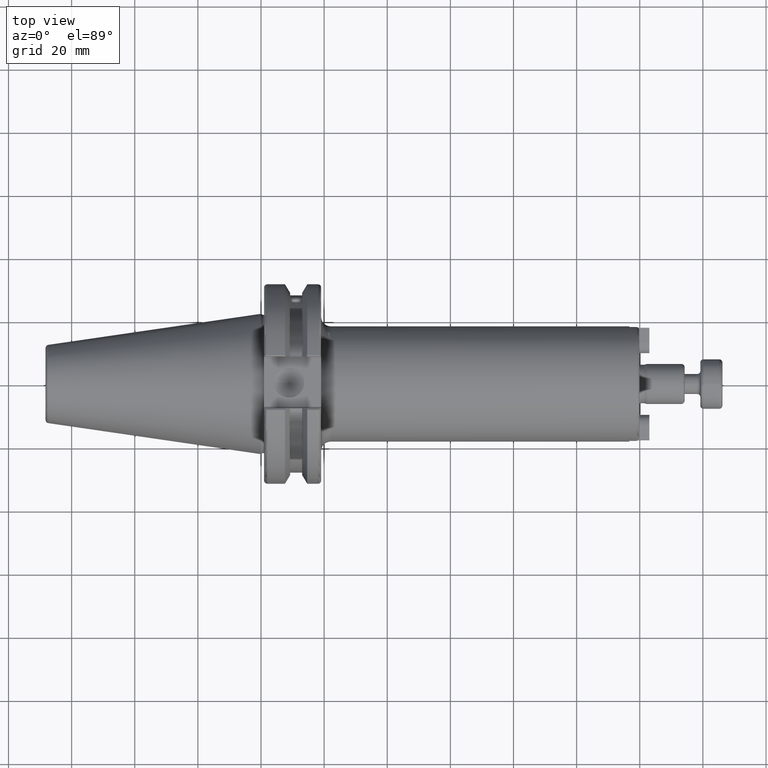
[diagram: clean part render]
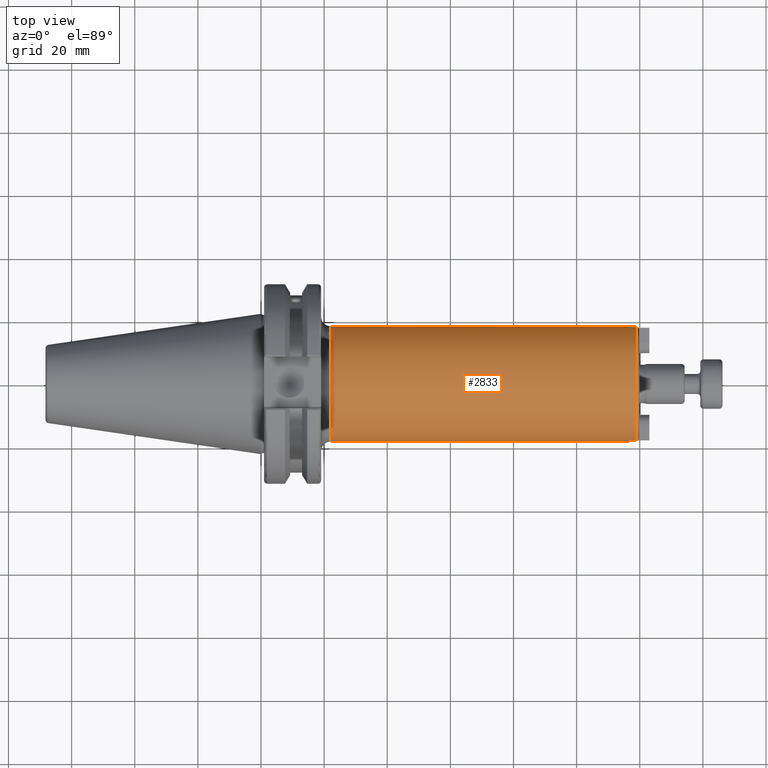
[diagram: same view with one face highlighted and labeled with its STEP entity id]
A machine part, top view. The second image highlights one B-rep face of the part: STEP entity #2833.
In plain terms, the highlighted cylindrical surface (bore or boss wall) has radius 18.265 mm, axis along (1, 0, 0).
Its self-contained STEP definition (entity closure, byte-faithful):
#115=CYLINDRICAL_SURFACE('',#3095,18.265);
#245=FACE_OUTER_BOUND('',#401,.T.);
#401=EDGE_LOOP('',(#1897,#1898,#1899,#1900,#1901,#1902,#1903,#1904,#1905,
#1906,#1907,#1908,#1909,#1910));
#577=LINE('',#4394,#751);
#583=LINE('',#4424,#757);
#585=LINE('',#4439,#759);
#586=LINE('',#4448,#760);
#587=LINE('',#4452,#761);
#751=VECTOR('',#3473,10.);
#757=VECTOR('',#3493,10.);
#759=VECTOR('',#3497,18.265);
#760=VECTOR('',#3506,10.);
#761=VECTOR('',#3509,10.);
#923=CIRCLE('',#3082,18.265);
#925=CIRCLE('',#3084,18.265);
#931=CIRCLE('',#3096,18.265);
#932=CIRCLE('',#3097,18.265);
#933=CIRCLE('',#3098,18.265);
#934=CIRCLE('',#3099,18.265);
#935=CIRCLE('',#3100,18.265);
#936=CIRCLE('',#3101,18.265);
#1113=VERTEX_POINT('',#4378);
#1114=VERTEX_POINT('',#4379);
#1117=VERTEX_POINT('',#4385);
#1120=VERTEX_POINT('',#4393);
#1127=VERTEX_POINT('',#4423);
#1129=VERTEX_POINT('',#4438);
#1130=VERTEX_POINT('',#4440);
#1131=VERTEX_POINT('',#4442);
#1132=VERTEX_POINT('',#4445);
#1133=VERTEX_POINT('',#4447);
#1134=VERTEX_POINT('',#4449);
#1135=VERTEX_POINT('',#4451);
#1423=EDGE_CURVE('',#1113,#1114,#923,.T.);
#1427=EDGE_CURVE('',#1114,#1117,#925,.T.);
#1430=EDGE_CURVE('',#1117,#1120,#577,.T.);
#1440=EDGE_CURVE('',#1127,#1113,#583,.T.);
#1443=EDGE_CURVE('',#1114,#1129,#585,.T.);
#1444=EDGE_CURVE('',#1130,#1129,#931,.T.);
#1445=EDGE_CURVE('',#1131,#1130,#932,.T.);
#1446=EDGE_CURVE('',#1129,#1131,#933,.T.);
#1447=EDGE_CURVE('',#1132,#1120,#934,.T.);
#1448=EDGE_CURVE('',#1132,#1133,#586,.T.);
#1449=EDGE_CURVE('',#1133,#1134,#935,.T.);
#1450=EDGE_CURVE('',#1134,#1135,#587,.T.);
#1451=EDGE_CURVE('',#1127,#1135,#936,.T.);
#1897=ORIENTED_EDGE('',*,*,#1440,.T.);
#1898=ORIENTED_EDGE('',*,*,#1423,.T.);
#1899=ORIENTED_EDGE('',*,*,#1443,.T.);
#1900=ORIENTED_EDGE('',*,*,#1444,.F.);
#1901=ORIENTED_EDGE('',*,*,#1445,.F.);
#1902=ORIENTED_EDGE('',*,*,#1446,.F.);
#1903=ORIENTED_EDGE('',*,*,#1443,.F.);
#1904=ORIENTED_EDGE('',*,*,#1427,.T.);
#1905=ORIENTED_EDGE('',*,*,#1430,.T.);
#1906=ORIENTED_EDGE('',*,*,#1447,.F.);
#1907=ORIENTED_EDGE('',*,*,#1448,.T.);
#1908=ORIENTED_EDGE('',*,*,#1449,.T.);
#1909=ORIENTED_EDGE('',*,*,#1450,.T.);
#1910=ORIENTED_EDGE('',*,*,#1451,.F.);
#2833=ADVANCED_FACE('',(#245),#115,.T.);
#3082=AXIS2_PLACEMENT_3D('',#4380,#3459,#3460);
#3084=AXIS2_PLACEMENT_3D('',#4387,#3465,#3466);
#3095=AXIS2_PLACEMENT_3D('',#4437,#3495,#3496);
#3096=AXIS2_PLACEMENT_3D('',#4441,#3498,#3499);
#3097=AXIS2_PLACEMENT_3D('',#4443,#3500,#3501);
#3098=AXIS2_PLACEMENT_3D('',#4444,#3502,#3503);
#3099=AXIS2_PLACEMENT_3D('',#4446,#3504,#3505);
#3100=AXIS2_PLACEMENT_3D('',#4450,#3507,#3508);
#3101=AXIS2_PLACEMENT_3D('',#4453,#3510,#3511);
#3459=DIRECTION('center_axis',(-1.,0.,0.));
#3460=DIRECTION('ref_axis',(0.,1.,0.));
#3465=DIRECTION('center_axis',(-1.,0.,0.));
#3466=DIRECTION('ref_axis',(0.,1.,0.));
#3473=DIRECTION('',(1.,0.,0.));
#3493=DIRECTION('',(-1.,0.,0.));
#3495=DIRECTION('center_axis',(1.,0.,0.));
#3496=DIRECTION('ref_axis',(0.,1.,0.));
#3497=DIRECTION('',(-1.,0.,0.));
#3498=DIRECTION('center_axis',(-1.,0.,0.));
#3499=DIRECTION('ref_axis',(0.,-1.,-1.22464679914735E-16));
#3500=DIRECTION('center_axis',(-1.,0.,0.));
#3501=DIRECTION('ref_axis',(0.,-1.,-1.22464679914735E-16));
#3502=DIRECTION('center_axis',(-1.,0.,0.));
#3503=DIRECTION('ref_axis',(0.,-1.,-1.22464679914735E-16));
#3504=DIRECTION('center_axis',(1.,0.,0.));
#3505=DIRECTION('ref_axis',(0.,-1.,1.83697019872103E-16));
#3506=DIRECTION('',(-1.,0.,0.));
#3507=DIRECTION('center_axis',(-1.,0.,0.));
#3508=DIRECTION('ref_axis',(0.,1.,0.));
#3509=DIRECTION('',(1.,0.,0.));
#3510=DIRECTION('center_axis',(1.,0.,0.));
#3511=DIRECTION('ref_axis',(0.,-1.,1.83697019872103E-16));
#4378=CARTESIAN_POINT('',(116.688,-17.9869285871713,-3.175));
#4379=CARTESIAN_POINT('',(116.688,-18.265,-2.23681737864264E-15));
#4380=CARTESIAN_POINT('Origin',(116.688,0.,0.));
#4385=CARTESIAN_POINT('',(116.688,-17.9869285871713,3.175));
#4387=CARTESIAN_POINT('Origin',(116.688,0.,0.));
#4393=CARTESIAN_POINT('',(118.888,-17.9869285871713,3.175));
#4394=CARTESIAN_POINT('',(69.469,-17.9869285871713,3.175));
#4423=CARTESIAN_POINT('',(118.888,-17.9869285871713,-3.175));
#4424=CARTESIAN_POINT('',(69.469,-17.9869285871713,-3.175));
#4437=CARTESIAN_POINT('Origin',(69.469,0.,0.));
#4438=CARTESIAN_POINT('',(22.05,-18.265,-2.23681737864264E-15));
#4439=CARTESIAN_POINT('',(69.469,-18.265,-2.23681737864264E-15));
#4440=CARTESIAN_POINT('',(22.05,-2.23681737864264E-15,-18.265));
#4441=CARTESIAN_POINT('Origin',(22.05,0.,0.));
#4442=CARTESIAN_POINT('',(22.05,18.265,0.));
#4443=CARTESIAN_POINT('Origin',(22.05,0.,0.));
#4444=CARTESIAN_POINT('Origin',(22.05,0.,0.));
#4445=CARTESIAN_POINT('',(118.888,17.9869285871713,3.175));
#4446=CARTESIAN_POINT('Origin',(118.888,0.,0.));
#4447=CARTESIAN_POINT('',(116.688,17.9869285871713,3.175));
#4448=CARTESIAN_POINT('',(69.469,17.9869285871713,3.175));
#4449=CARTESIAN_POINT('',(116.688,17.9869285871713,-3.175));
#4450=CARTESIAN_POINT('Origin',(116.688,0.,0.));
#4451=CARTESIAN_POINT('',(118.888,17.9869285871713,-3.175));
#4452=CARTESIAN_POINT('',(69.469,17.9869285871713,-3.175));
#4453=CARTESIAN_POINT('Origin',(118.888,0.,0.));